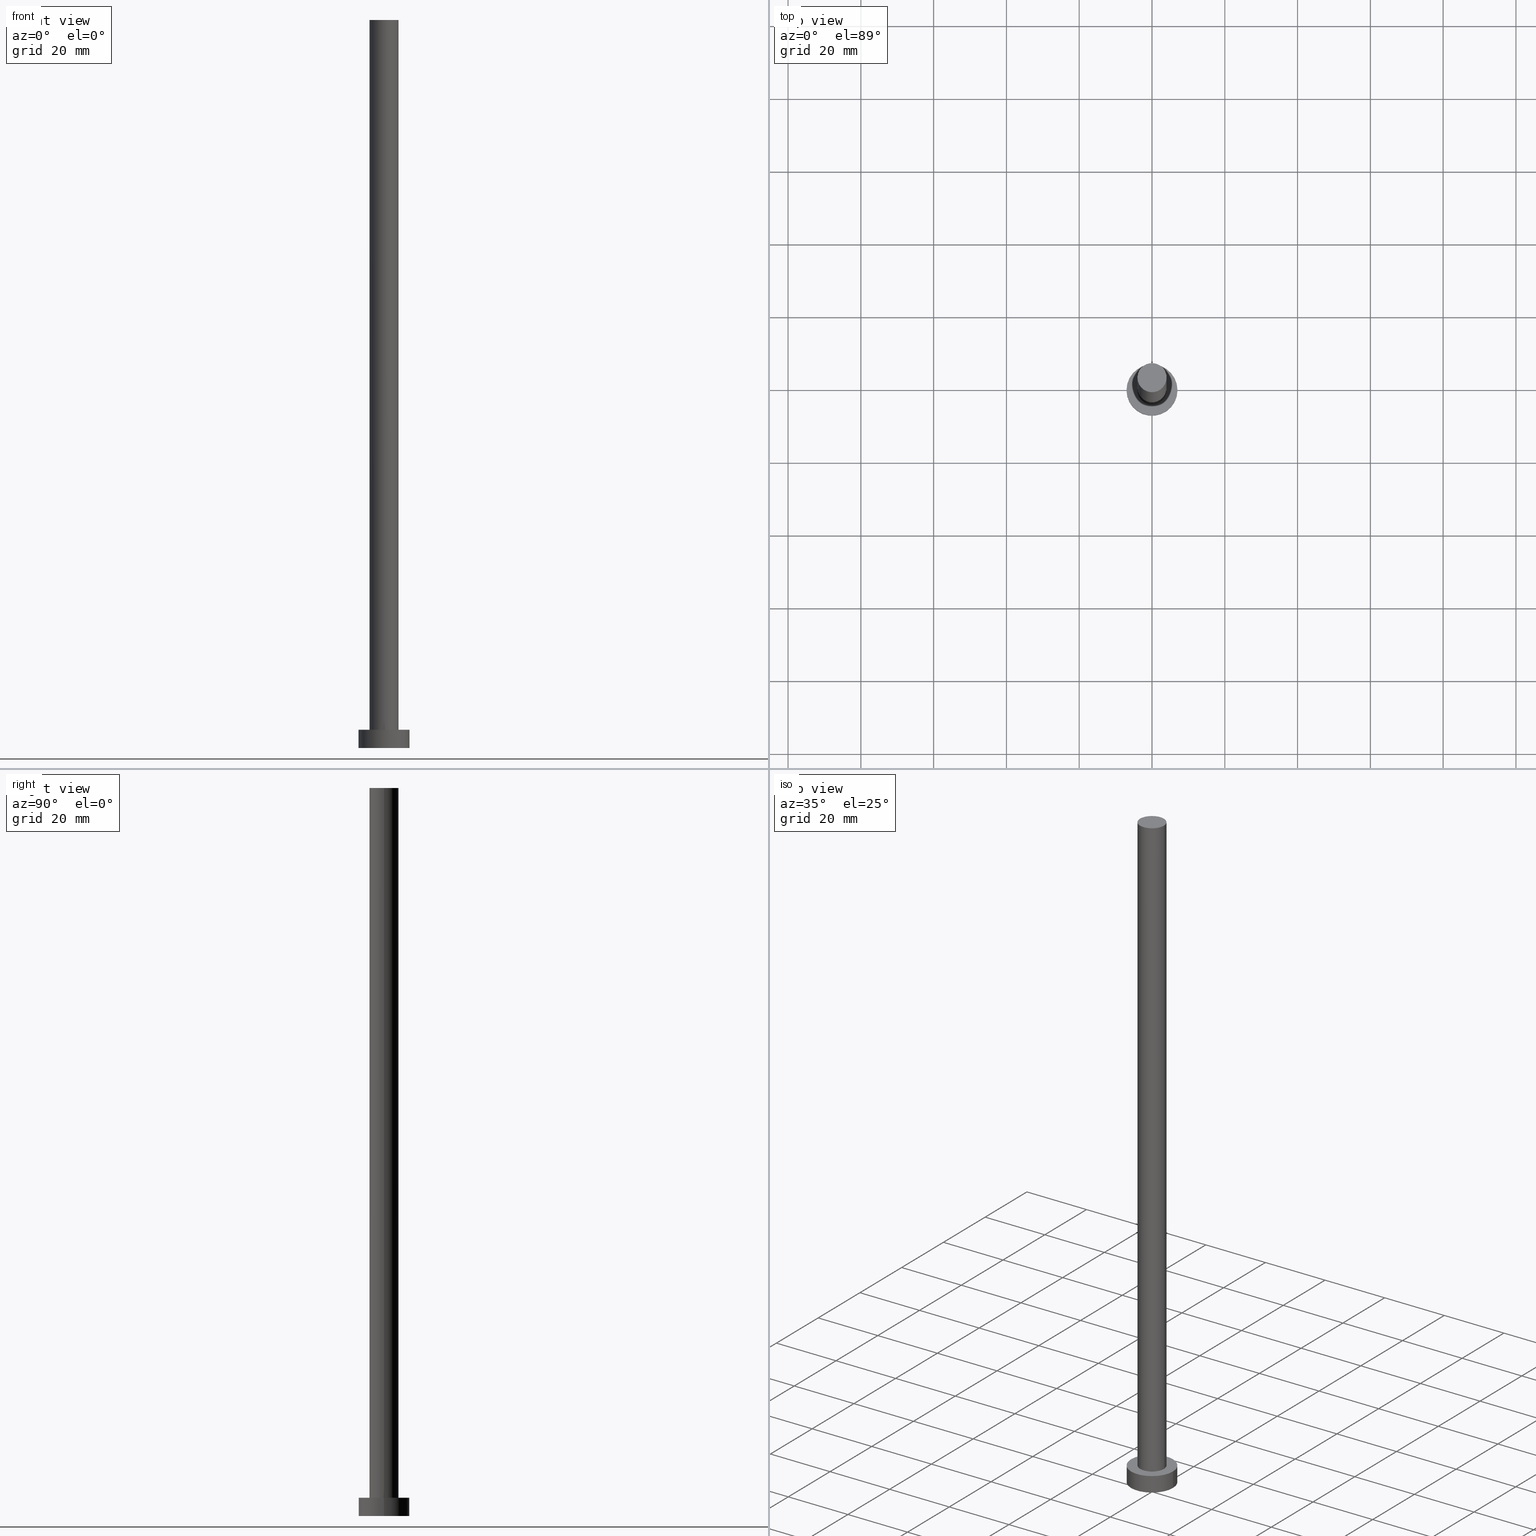
[diagram: canonical four-view strip — front | top / right | iso, engineering-drawing reading convention]
A machine part, canonical four-view strip (front | top / right | iso — engineering-drawing reading convention). The complete STEP part file that produces these views, byte-faithful:
ISO-10303-21;
HEADER;
FILE_DESCRIPTION (( 'STEP AP203' ),
    '1' );
FILE_NAME ('1f45.STEP',
    '2023-02-13T13:33:10',
    ( '' ),
    ( '' ),
    'SwSTEP 2.0',
    'SolidWorks 2019',
    '' );
FILE_SCHEMA (( 'CONFIG_CONTROL_DESIGN' ));
ENDSEC;

DATA;
#1 = DIRECTION ( 'NONE',  ( 1.000000000000000000, 0.000000000000000000, 0.000000000000000000 ) ) ;
#2 = CARTESIAN_POINT ( 'NONE',  ( 0.000000000000000000, 0.000000000000000000, 0.000000000000000000 ) ) ;
#3 = ADVANCED_FACE ( 'NONE', ( #81 ), #21, .T. ) ;
#4 = CARTESIAN_POINT ( 'NONE',  ( 0.000000000000000000, 0.000000000000000000, 0.000000000000000000 ) ) ;
#5 = CIRCLE ( 'NONE', #164, 4.000000000000000000 ) ;
#6 = CARTESIAN_POINT ( 'NONE',  ( 4.000000000000000000, 4.898587196589412829E-16, 5.000000000000000000 ) ) ;
#7 = EDGE_CURVE ( 'NONE', #38, #97, #185, .T. ) ;
#8 = CARTESIAN_POINT ( 'NONE',  ( 0.000000000000000000, 0.000000000000000000, 5.000000000000000000 ) ) ;
#9 = CALENDAR_DATE ( 2023, 13, 2 ) ;
#10 = DIRECTION ( 'NONE',  ( 1.000000000000000000, 0.000000000000000000, 0.000000000000000000 ) ) ;
#11 = DIRECTION ( 'NONE',  ( -0.000000000000000000, -0.000000000000000000, -1.000000000000000000 ) ) ;
#12 = DIRECTION ( 'NONE',  ( -0.000000000000000000, -0.000000000000000000, -1.000000000000000000 ) ) ;
#13 = AXIS2_PLACEMENT_3D ( 'NONE', #33, #217, #1 ) ;
#14 = CIRCLE ( 'NONE', #94, 7.000000000000000000 ) ;
#15 = EDGE_CURVE ( 'NONE', #37, #137, #80, .T. ) ;
#16 = ORIENTED_EDGE ( 'NONE', *, *, #79, .T. ) ;
#17 = CALENDAR_DATE ( 2023, 13, 2 ) ;
#18 = ORIENTED_EDGE ( 'NONE', *, *, #7, .F. ) ;
#19 = DIRECTION ( 'NONE',  ( 1.000000000000000000, 0.000000000000000000, -0.000000000000000000 ) ) ;
#20 = EDGE_CURVE ( 'NONE', #38, #37, #130, .T. ) ;
#21 = PLANE ( 'NONE',  #40 ) ;
#22 = CARTESIAN_POINT ( 'NONE',  ( 7.000000000000000000, 8.572527594031473190E-16, 0.000000000000000000 ) ) ;
#23 = PERSON_AND_ORGANIZATION_ROLE ( 'classification_officer' ) ;
#24 = FACE_OUTER_BOUND ( 'NONE', #233, .T. ) ;
#25 = APPROVAL_DATE_TIME ( #126, #154 ) ;
#26 = CC_DESIGN_DATE_AND_TIME_ASSIGNMENT ( #250, #48, ( #96 ) ) ;
#27 = AXIS2_PLACEMENT_3D ( 'NONE', #236, #199, #28 ) ;
#28 = DIRECTION ( 'NONE',  ( -1.000000000000000000, 0.000000000000000000, 0.000000000000000000 ) ) ;
#29 = FACE_OUTER_BOUND ( 'NONE', #41, .T. ) ;
#30 = CYLINDRICAL_SURFACE ( 'NONE', #27, 7.000000000000000000 ) ;
#31 = LOCAL_TIME ( 14, 33, 10.00000000000000000, #173 ) ;
#32 = EDGE_CURVE ( 'NONE', #165, #100, #215, .T. ) ;
#33 = CARTESIAN_POINT ( 'NONE',  ( 0.000000000000000000, 0.000000000000000000, 0.000000000000000000 ) ) ;
#34 = ADVANCED_FACE ( 'NONE', ( #24 ), #30, .T. ) ;
#35 =( GEOMETRIC_REPRESENTATION_CONTEXT ( 3 ) GLOBAL_UNCERTAINTY_ASSIGNED_CONTEXT ( ( #63 ) ) GLOBAL_UNIT_ASSIGNED_CONTEXT ( ( #225, #183, #55 ) ) REPRESENTATION_CONTEXT ( 'NONE', 'WORKASPACE' ) );
#36 = LOCAL_TIME ( 14, 33, 10.00000000000000000, #129 ) ;
#37 = VERTEX_POINT ( 'NONE', #105 ) ;
#38 = VERTEX_POINT ( 'NONE', #175 ) ;
#39 = PRODUCT ( '1f45', '1f45', '', ( #232 ) ) ;
#40 = AXIS2_PLACEMENT_3D ( 'NONE', #190, #102, #19 ) ;
#41 = EDGE_LOOP ( 'NONE', ( #42, #116 ) ) ;
#42 = ORIENTED_EDGE ( 'NONE', *, *, #15, .F. ) ;
#43 = PERSON_AND_ORGANIZATION ( #191, #151 ) ;
#44 = DIRECTION ( 'NONE',  ( -0.000000000000000000, -0.000000000000000000, -1.000000000000000000 ) ) ;
#45 = APPROVAL_ROLE ( '' ) ;
#46 = CARTESIAN_POINT ( 'NONE',  ( 4.000000000000000000, 4.898587196589412829E-16, 200.0000000000000000 ) ) ;
#47 = DIRECTION ( 'NONE',  ( 1.000000000000000000, 0.000000000000000000, -0.000000000000000000 ) ) ;
#48 = DATE_TIME_ROLE ( 'classification_date' ) ;
#49 = AXIS2_PLACEMENT_3D ( 'NONE', #4, #180, #201 ) ;
#50 = DIRECTION ( 'NONE',  ( 0.000000000000000000, 0.000000000000000000, 1.000000000000000000 ) ) ;
#51 = PERSON_AND_ORGANIZATION ( #191, #151 ) ;
#52 = ADVANCED_BREP_SHAPE_REPRESENTATION ( '1f45', ( #60, #13 ), #35 ) ;
#53 = CARTESIAN_POINT ( 'NONE',  ( 0.000000000000000000, 0.000000000000000000, 200.0000000000000000 ) ) ;
#54 = CIRCLE ( 'NONE', #115, 4.000000000000000000 ) ;
#55 =( NAMED_UNIT ( * ) SI_UNIT ( $, .STERADIAN. ) SOLID_ANGLE_UNIT ( ) );
#56 = LOCAL_TIME ( 14, 33, 10.00000000000000000, #143 ) ;
#57 = ORIENTED_EDGE ( 'NONE', *, *, #77, .F. ) ;
#58 = EDGE_LOOP ( 'NONE', ( #118, #229 ) ) ;
#59 = APPROVAL_STATUS ( 'not_yet_approved' ) ;
#60 = MANIFOLD_SOLID_BREP ( 'P�idat vysunut�m3', #195 ) ;
#61 = APPROVAL_PERSON_ORGANIZATION ( #202, #154, #99 ) ;
#62 = ORIENTED_EDGE ( 'NONE', *, *, #15, .T. ) ;
#63 = UNCERTAINTY_MEASURE_WITH_UNIT (LENGTH_MEASURE( 1.000000000000000082E-05 ), #225, 'distance_accuracy_value', 'NONE');
#64 = DIRECTION ( 'NONE',  ( 1.000000000000000000, 0.000000000000000000, 0.000000000000000000 ) ) ;
#65 = VECTOR ( 'NONE', #44, 1000.000000000000000 ) ;
#66 = EDGE_CURVE ( 'NONE', #171, #255, #141, .T. ) ;
#67 = PLANE ( 'NONE',  #168 ) ;
#68 = APPROVAL_DATE_TIME ( #209, #82 ) ;
#69 = APPROVAL_STATUS ( 'not_yet_approved' ) ;
#70 = CARTESIAN_POINT ( 'NONE',  ( 0.000000000000000000, 0.000000000000000000, 5.000000000000000000 ) ) ;
#71 = SHAPE_DEFINITION_REPRESENTATION ( #248, #52 ) ;
#72 = DIRECTION ( 'NONE',  ( 1.000000000000000000, 0.000000000000000000, 0.000000000000000000 ) ) ;
#73 = CIRCLE ( 'NONE', #205, 4.000000000000000000 ) ;
#74 = CARTESIAN_POINT ( 'NONE',  ( 7.000000000000000000, 8.572527594031473190E-16, 5.000000000000000000 ) ) ;
#75 = EDGE_CURVE ( 'NONE', #97, #38, #14, .T. ) ;
#76 = CIRCLE ( 'NONE', #49, 7.000000000000000000 ) ;
#77 = EDGE_CURVE ( 'NONE', #165, #171, #54, .T. ) ;
#78 = CARTESIAN_POINT ( 'NONE',  ( -4.000000000000000000, 0.000000000000000000, 5.000000000000000000 ) ) ;
#79 = EDGE_CURVE ( 'NONE', #171, #165, #5, .T. ) ;
#80 = CIRCLE ( 'NONE', #179, 7.000000000000000000 ) ;
#81 = FACE_OUTER_BOUND ( 'NONE', #98, .T. ) ;
#82 = APPROVAL ( #59, 'NEUR�EN�' ) ;
#83 = ORIENTED_EDGE ( 'NONE', *, *, #20, .T. ) ;
#84 = DIRECTION ( 'NONE',  ( 0.000000000000000000, 0.000000000000000000, 1.000000000000000000 ) ) ;
#85 = CARTESIAN_POINT ( 'NONE',  ( 0.000000000000000000, 0.000000000000000000, 200.0000000000000000 ) ) ;
#86 = CC_DESIGN_APPROVAL ( #162, ( #211 ) ) ;
#87 = SECURITY_CLASSIFICATION_LEVEL ( 'unclassified' ) ;
#88 = FACE_BOUND ( 'NONE', #213, .T. ) ;
#89 = PERSON_AND_ORGANIZATION ( #191, #151 ) ;
#90 = PERSON_AND_ORGANIZATION ( #191, #151 ) ;
#91 = FACE_OUTER_BOUND ( 'NONE', #235, .T. ) ;
#92 = APPLICATION_CONTEXT ( 'configuration controlled 3d designs of mechanical parts and assemblies' ) ;
#93 = FACE_OUTER_BOUND ( 'NONE', #134, .T. ) ;
#94 = AXIS2_PLACEMENT_3D ( 'NONE', #218, #121, #172 ) ;
#95 = PRODUCT_RELATED_PRODUCT_CATEGORY ( 'detail', '', ( #39 ) ) ;
#96 = SECURITY_CLASSIFICATION ( '', '', #87 ) ;
#97 = VERTEX_POINT ( 'NONE', #147 ) ;
#98 = EDGE_LOOP ( 'NONE', ( #16, #228 ) ) ;
#99 = APPROVAL_ROLE ( '' ) ;
#100 = VERTEX_POINT ( 'NONE', #6 ) ;
#101 = CARTESIAN_POINT ( 'NONE',  ( 0.000000000000000000, 0.000000000000000000, 5.000000000000000000 ) ) ;
#102 = DIRECTION ( 'NONE',  ( 0.000000000000000000, 0.000000000000000000, 1.000000000000000000 ) ) ;
#103 = APPLICATION_CONTEXT ( 'configuration controlled 3d designs of mechanical parts and assemblies' ) ;
#104 = DIRECTION ( 'NONE',  ( -0.000000000000000000, -0.000000000000000000, -1.000000000000000000 ) ) ;
#105 = CARTESIAN_POINT ( 'NONE',  ( -7.000000000000000000, 0.000000000000000000, 0.000000000000000000 ) ) ;
#106 = CALENDAR_DATE ( 2023, 13, 2 ) ;
#107 = DIRECTION ( 'NONE',  ( 0.000000000000000000, 0.000000000000000000, 1.000000000000000000 ) ) ;
#108 = DIRECTION ( 'NONE',  ( 0.000000000000000000, 0.000000000000000000, 1.000000000000000000 ) ) ;
#109 = CARTESIAN_POINT ( 'NONE',  ( -4.000000000000000000, 0.000000000000000000, 200.0000000000000000 ) ) ;
#110 = AXIS2_PLACEMENT_3D ( 'NONE', #112, #12, #246 ) ;
#111 = CC_DESIGN_SECURITY_CLASSIFICATION ( #96, ( #132 ) ) ;
#112 = CARTESIAN_POINT ( 'NONE',  ( 0.000000000000000000, 0.000000000000000000, 200.0000000000000000 ) ) ;
#113 = LOCAL_TIME ( 14, 33, 10.00000000000000000, #135 ) ;
#114 = EDGE_CURVE ( 'NONE', #255, #100, #176, .T. ) ;
#115 = AXIS2_PLACEMENT_3D ( 'NONE', #85, #241, #72 ) ;
#116 = ORIENTED_EDGE ( 'NONE', *, *, #193, .F. ) ;
#117 = CC_DESIGN_PERSON_AND_ORGANIZATION_ASSIGNMENT ( #43, #234, ( #39 ) ) ;
#118 = ORIENTED_EDGE ( 'NONE', *, *, #7, .T. ) ;
#119 = ORIENTED_EDGE ( 'NONE', *, *, #75, .F. ) ;
#120 = ORIENTED_EDGE ( 'NONE', *, *, #114, .T. ) ;
#121 = DIRECTION ( 'NONE',  ( 0.000000000000000000, 0.000000000000000000, 1.000000000000000000 ) ) ;
#122 = COORDINATED_UNIVERSAL_TIME_OFFSET ( 1, 0, .AHEAD. ) ;
#123 = CARTESIAN_POINT ( 'NONE',  ( 0.000000000000000000, 0.000000000000000000, 0.000000000000000000 ) ) ;
#124 = PERSON_AND_ORGANIZATION_ROLE ( 'creator' ) ;
#125 = DIRECTION ( 'NONE',  ( 1.000000000000000000, 0.000000000000000000, -0.000000000000000000 ) ) ;
#126 = DATE_AND_TIME ( #146, #31 ) ;
#127 = CC_DESIGN_PERSON_AND_ORGANIZATION_ASSIGNMENT ( #89, #124, ( #211 ) ) ;
#128 = LINE ( 'NONE', #74, #198 ) ;
#129 = COORDINATED_UNIVERSAL_TIME_OFFSET ( 1, 0, .AHEAD. ) ;
#130 = LINE ( 'NONE', #238, #144 ) ;
#131 = DIRECTION ( 'NONE',  ( -0.000000000000000000, -0.000000000000000000, -1.000000000000000000 ) ) ;
#132 = PRODUCT_DEFINITION_FORMATION_WITH_SPECIFIED_SOURCE ( 'LIBOVOLN�', '', #39, .NOT_KNOWN. ) ;
#133 = ORIENTED_EDGE ( 'NONE', *, *, #182, .T. ) ;
#134 = EDGE_LOOP ( 'NONE', ( #57, #170, #140, #253 ) ) ;
#135 = COORDINATED_UNIVERSAL_TIME_OFFSET ( 1, 0, .AHEAD. ) ;
#136 = LOCAL_TIME ( 14, 33, 10.00000000000000000, #122 ) ;
#137 = VERTEX_POINT ( 'NONE', #22 ) ;
#138 = APPROVAL_ROLE ( '' ) ;
#139 = ORIENTED_EDGE ( 'NONE', *, *, #79, .F. ) ;
#140 = ORIENTED_EDGE ( 'NONE', *, *, #231, .T. ) ;
#141 = LINE ( 'NONE', #220, #65 ) ;
#142 = DIRECTION ( 'NONE',  ( 1.000000000000000000, 0.000000000000000000, 0.000000000000000000 ) ) ;
#143 = COORDINATED_UNIVERSAL_TIME_OFFSET ( 1, 0, .AHEAD. ) ;
#144 = VECTOR ( 'NONE', #11, 1000.000000000000000 ) ;
#145 = CYLINDRICAL_SURFACE ( 'NONE', #200, 4.000000000000000000 ) ;
#146 = CALENDAR_DATE ( 2023, 13, 2 ) ;
#147 = CARTESIAN_POINT ( 'NONE',  ( 7.000000000000000000, 8.572527594031473190E-16, 5.000000000000000000 ) ) ;
#148 = CYLINDRICAL_SURFACE ( 'NONE', #206, 7.000000000000000000 ) ;
#149 = ADVANCED_FACE ( 'NONE', ( #204 ), #145, .T. ) ;
#150 = DATE_TIME_ROLE ( 'creation_date' ) ;
#151 = ORGANIZATION ( 'NEUR�EN�', 'NEUR�EN�', '' ) ;
#152 = ORIENTED_EDGE ( 'NONE', *, *, #20, .F. ) ;
#153 = DIRECTION ( 'NONE',  ( 1.000000000000000000, 0.000000000000000000, 0.000000000000000000 ) ) ;
#154 = APPROVAL ( #177, 'NEUR�EN�' ) ;
#155 = CARTESIAN_POINT ( 'NONE',  ( 4.000000000000000000, 4.898587196589412829E-16, 200.0000000000000000 ) ) ;
#156 = DIRECTION ( 'NONE',  ( 0.000000000000000000, 0.000000000000000000, 1.000000000000000000 ) ) ;
#157 = PERSON_AND_ORGANIZATION ( #191, #151 ) ;
#158 = FACE_OUTER_BOUND ( 'NONE', #58, .T. ) ;
#159 = DATE_AND_TIME ( #106, #36 ) ;
#160 = CARTESIAN_POINT ( 'NONE',  ( 0.000000000000000000, 0.000000000000000000, 200.0000000000000000 ) ) ;
#161 = DIRECTION ( 'NONE',  ( -1.000000000000000000, 0.000000000000000000, 0.000000000000000000 ) ) ;
#162 = APPROVAL ( #69, 'NEUR�EN�' ) ;
#163 = CARTESIAN_POINT ( 'NONE',  ( 0.000000000000000000, 0.000000000000000000, 5.000000000000000000 ) ) ;
#164 = AXIS2_PLACEMENT_3D ( 'NONE', #53, #107, #221 ) ;
#165 = VERTEX_POINT ( 'NONE', #46 ) ;
#166 = ORIENTED_EDGE ( 'NONE', *, *, #231, .F. ) ;
#167 = VECTOR ( 'NONE', #222, 1000.000000000000000 ) ;
#168 = AXIS2_PLACEMENT_3D ( 'NONE', #123, #196, #125 ) ;
#169 = CC_DESIGN_DATE_AND_TIME_ASSIGNMENT ( #159, #150, ( #211 ) ) ;
#170 = ORIENTED_EDGE ( 'NONE', *, *, #32, .T. ) ;
#171 = VERTEX_POINT ( 'NONE', #109 ) ;
#172 = DIRECTION ( 'NONE',  ( 1.000000000000000000, 0.000000000000000000, 0.000000000000000000 ) ) ;
#173 = COORDINATED_UNIVERSAL_TIME_OFFSET ( 1, 0, .AHEAD. ) ;
#174 = CC_DESIGN_PERSON_AND_ORGANIZATION_ASSIGNMENT ( #188, #216, ( #132 ) ) ;
#175 = CARTESIAN_POINT ( 'NONE',  ( -7.000000000000000000, 0.000000000000000000, 5.000000000000000000 ) ) ;
#176 = CIRCLE ( 'NONE', #227, 4.000000000000000000 ) ;
#177 = APPROVAL_STATUS ( 'not_yet_approved' ) ;
#178 = CARTESIAN_POINT ( 'NONE',  ( 0.000000000000000000, 0.000000000000000000, 5.000000000000000000 ) ) ;
#179 = AXIS2_PLACEMENT_3D ( 'NONE', #2, #50, #64 ) ;
#180 = DIRECTION ( 'NONE',  ( 0.000000000000000000, 0.000000000000000000, 1.000000000000000000 ) ) ;
#181 = PLANE ( 'NONE',  #254 ) ;
#182 = EDGE_CURVE ( 'NONE', #97, #137, #128, .T. ) ;
#183 =( NAMED_UNIT ( * ) PLANE_ANGLE_UNIT ( ) SI_UNIT ( $, .RADIAN. ) );
#184 = CC_DESIGN_PERSON_AND_ORGANIZATION_ASSIGNMENT ( #51, #23, ( #96 ) ) ;
#185 = CIRCLE ( 'NONE', #223, 7.000000000000000000 ) ;
#186 = APPROVAL_PERSON_ORGANIZATION ( #157, #162, #138 ) ;
#187 = ORIENTED_EDGE ( 'NONE', *, *, #114, .F. ) ;
#188 = PERSON_AND_ORGANIZATION ( #191, #151 ) ;
#189 = ORIENTED_EDGE ( 'NONE', *, *, #182, .F. ) ;
#190 = CARTESIAN_POINT ( 'NONE',  ( 0.000000000000000000, 0.000000000000000000, 200.0000000000000000 ) ) ;
#191 = PERSON ( 'NEUR�EN�', 'NEUR�EN�', 'NEUR�EN�', ('NEUR�EN�'), ('NEUR�EN�'), ('NEUR�EN�') ) ;
#192 = DIRECTION ( 'NONE',  ( 0.000000000000000000, 0.000000000000000000, 1.000000000000000000 ) ) ;
#193 = EDGE_CURVE ( 'NONE', #137, #37, #76, .T. ) ;
#194 = PERSON_AND_ORGANIZATION_ROLE ( 'creator' ) ;
#195 = CLOSED_SHELL ( 'NONE', ( #247, #237, #34, #207, #224, #149, #3 ) ) ;
#196 = DIRECTION ( 'NONE',  ( 0.000000000000000000, 0.000000000000000000, 1.000000000000000000 ) ) ;
#197 = CALENDAR_DATE ( 2023, 13, 2 ) ;
#198 = VECTOR ( 'NONE', #244, 1000.000000000000000 ) ;
#199 = DIRECTION ( 'NONE',  ( -0.000000000000000000, -0.000000000000000000, -1.000000000000000000 ) ) ;
#200 = AXIS2_PLACEMENT_3D ( 'NONE', #160, #104, #240 ) ;
#201 = DIRECTION ( 'NONE',  ( 1.000000000000000000, 0.000000000000000000, 0.000000000000000000 ) ) ;
#202 = PERSON_AND_ORGANIZATION ( #191, #151 ) ;
#203 = CC_DESIGN_PERSON_AND_ORGANIZATION_ASSIGNMENT ( #242, #194, ( #132 ) ) ;
#204 = FACE_OUTER_BOUND ( 'NONE', #208, .T. ) ;
#205 = AXIS2_PLACEMENT_3D ( 'NONE', #8, #108, #10 ) ;
#206 = AXIS2_PLACEMENT_3D ( 'NONE', #163, #131, #161 ) ;
#207 = ADVANCED_FACE ( 'NONE', ( #88, #158 ), #181, .T. ) ;
#208 = EDGE_LOOP ( 'NONE', ( #210, #139, #249, #120 ) ) ;
#209 = DATE_AND_TIME ( #17, #113 ) ;
#210 = ORIENTED_EDGE ( 'NONE', *, *, #32, .F. ) ;
#211 = PRODUCT_DEFINITION ( 'NEZN�M�', '', #132, #251 ) ;
#212 = APPLICATION_PROTOCOL_DEFINITION ( 'international standard', 'config_control_design', 1994, #103 ) ;
#213 = EDGE_LOOP ( 'NONE', ( #187, #166 ) ) ;
#214 = CC_DESIGN_APPROVAL ( #154, ( #96 ) ) ;
#215 = LINE ( 'NONE', #155, #167 ) ;
#216 = PERSON_AND_ORGANIZATION_ROLE ( 'design_supplier' ) ;
#217 = DIRECTION ( 'NONE',  ( 0.000000000000000000, 0.000000000000000000, 1.000000000000000000 ) ) ;
#218 = CARTESIAN_POINT ( 'NONE',  ( 0.000000000000000000, 0.000000000000000000, 5.000000000000000000 ) ) ;
#219 = APPLICATION_PROTOCOL_DEFINITION ( 'international standard', 'config_control_design', 1994, #92 ) ;
#220 = CARTESIAN_POINT ( 'NONE',  ( -4.000000000000000000, 0.000000000000000000, 200.0000000000000000 ) ) ;
#221 = DIRECTION ( 'NONE',  ( 1.000000000000000000, 0.000000000000000000, 0.000000000000000000 ) ) ;
#222 = DIRECTION ( 'NONE',  ( -0.000000000000000000, -0.000000000000000000, -1.000000000000000000 ) ) ;
#223 = AXIS2_PLACEMENT_3D ( 'NONE', #101, #84, #153 ) ;
#224 = ADVANCED_FACE ( 'NONE', ( #29 ), #67, .F. ) ;
#225 =( LENGTH_UNIT ( ) NAMED_UNIT ( * ) SI_UNIT ( .MILLI., .METRE. ) );
#226 = CC_DESIGN_APPROVAL ( #82, ( #132 ) ) ;
#227 = AXIS2_PLACEMENT_3D ( 'NONE', #178, #192, #142 ) ;
#228 = ORIENTED_EDGE ( 'NONE', *, *, #77, .T. ) ;
#229 = ORIENTED_EDGE ( 'NONE', *, *, #75, .T. ) ;
#230 = APPROVAL_DATE_TIME ( #239, #162 ) ;
#231 = EDGE_CURVE ( 'NONE', #100, #255, #73, .T. ) ;
#232 = MECHANICAL_CONTEXT ( 'NONE', #92, 'mechanical' ) ;
#233 = EDGE_LOOP ( 'NONE', ( #189, #18, #83, #62 ) ) ;
#234 = PERSON_AND_ORGANIZATION_ROLE ( 'design_owner' ) ;
#235 = EDGE_LOOP ( 'NONE', ( #119, #133, #252, #152 ) ) ;
#236 = CARTESIAN_POINT ( 'NONE',  ( 0.000000000000000000, 0.000000000000000000, 5.000000000000000000 ) ) ;
#237 = ADVANCED_FACE ( 'NONE', ( #91 ), #148, .T. ) ;
#238 = CARTESIAN_POINT ( 'NONE',  ( -7.000000000000000000, 0.000000000000000000, 5.000000000000000000 ) ) ;
#239 = DATE_AND_TIME ( #9, #136 ) ;
#240 = DIRECTION ( 'NONE',  ( -1.000000000000000000, 0.000000000000000000, 0.000000000000000000 ) ) ;
#241 = DIRECTION ( 'NONE',  ( 0.000000000000000000, 0.000000000000000000, 1.000000000000000000 ) ) ;
#242 = PERSON_AND_ORGANIZATION ( #191, #151 ) ;
#243 = APPROVAL_PERSON_ORGANIZATION ( #90, #82, #45 ) ;
#244 = DIRECTION ( 'NONE',  ( -0.000000000000000000, -0.000000000000000000, -1.000000000000000000 ) ) ;
#245 = CYLINDRICAL_SURFACE ( 'NONE', #110, 4.000000000000000000 ) ;
#246 = DIRECTION ( 'NONE',  ( -1.000000000000000000, 0.000000000000000000, 0.000000000000000000 ) ) ;
#247 = ADVANCED_FACE ( 'NONE', ( #93 ), #245, .T. ) ;
#248 = PRODUCT_DEFINITION_SHAPE ( 'NONE', 'NONE',  #211 ) ;
#249 = ORIENTED_EDGE ( 'NONE', *, *, #66, .T. ) ;
#250 = DATE_AND_TIME ( #197, #56 ) ;
#251 = DESIGN_CONTEXT ( 'detailed design', #103, 'design' ) ;
#252 = ORIENTED_EDGE ( 'NONE', *, *, #193, .T. ) ;
#253 = ORIENTED_EDGE ( 'NONE', *, *, #66, .F. ) ;
#254 = AXIS2_PLACEMENT_3D ( 'NONE', #70, #156, #47 ) ;
#255 = VERTEX_POINT ( 'NONE', #78 ) ;
ENDSEC;
END-ISO-10303-21;
